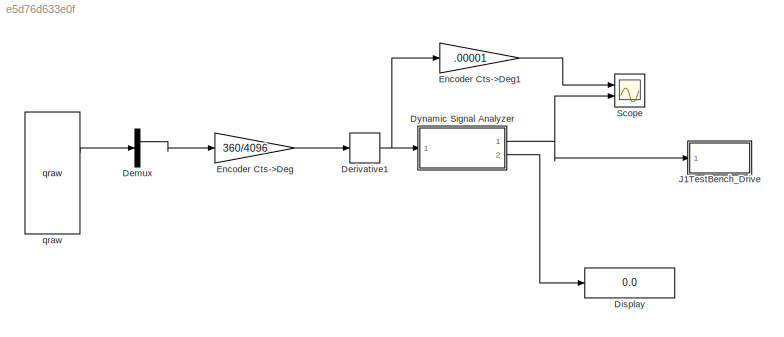
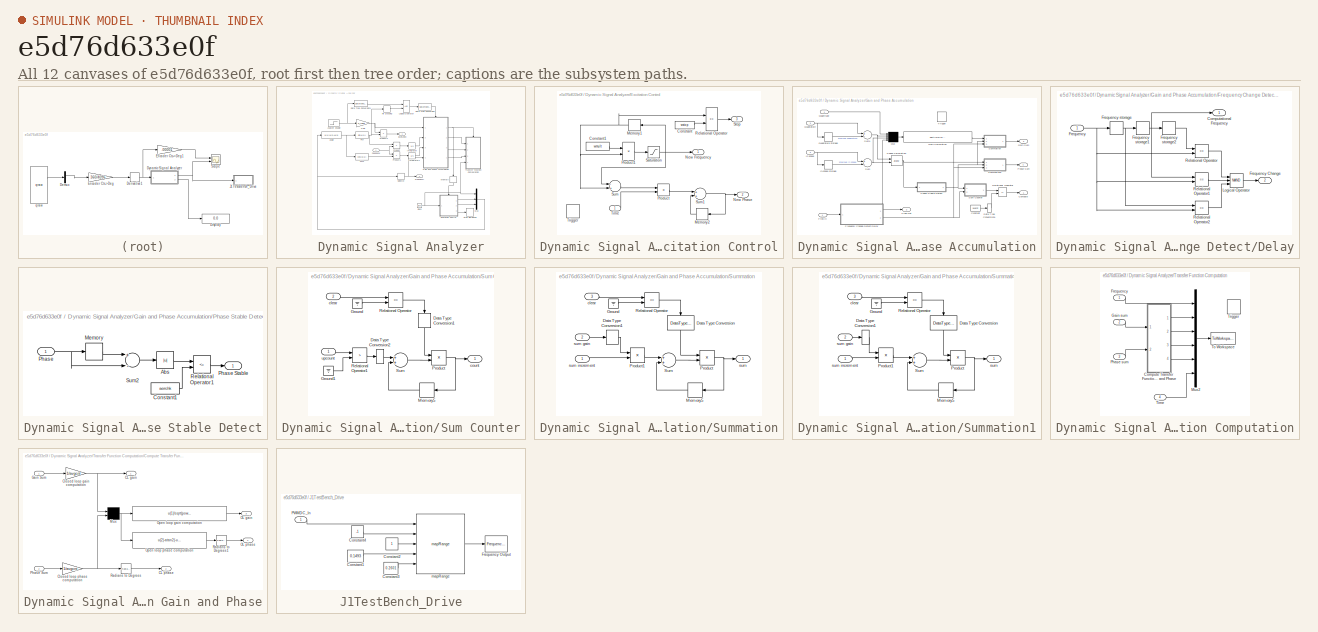
[diagram: thumbnail index - all 12 canvases of the model, root first then tree order]
MODEL slx_e5d76d633e0f
KIND model
CONFIG AbsTol = auto
CONFIG EnableMultiTasking = on
CONFIG FixedStep = 0.001
CONFIG MaxStep = auto
CONFIG MinStep = auto
CONFIG RelTol = 1e-3
CONFIG SampleTimeConstraint = Unconstrained
CONFIG Solver = ode5
CONFIG SolverName = ode5
CONFIG StartTime = 0.0
CONFIG StopTime = inf
BLOCK [Demux] Demux
  DisplayOption = bar
  Outputs = 2
  Ports = [1, 2]
BLOCK [Derivative] Derivative1
BLOCK [Display] Display
  Decimation = 1
  Ports = [1]
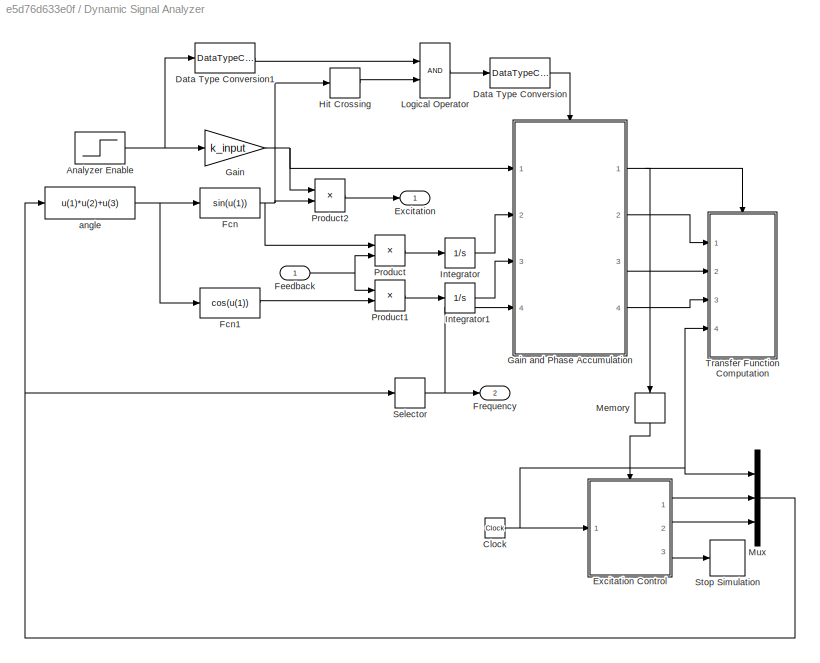
BLOCK [SubSystem] Dynamic Signal Analyzer
  Ports = [1, 2]
  RequestExecContextInheritance = off
  Variant = off
BLOCK [Step] Dynamic Signal Analyzer/Analyzer Enable
  After = analyzer_enable
  Time = tsettle
BLOCK [Clock] Dynamic Signal Analyzer/Clock
BLOCK [DataTypeConversion] Dynamic Signal Analyzer/Data Type Conversion
BLOCK [DataTypeConversion] Dynamic Signal Analyzer/Data Type Conversion1
BLOCK [Outport] Dynamic Signal Analyzer/Excitation
  IconDisplay = Port number
  InitialOutput = 0
BLOCK [SubSystem] Dynamic Signal Analyzer/Excitation Control
  Ports = [1, 3, 0, 1]
  RequestExecContextInheritance = off
  TreatAsAtomicUnit = on
  Variant = off
BLOCK [Constant] Dynamic Signal Analyzer/Excitation Control/Constant
  Value = wstop
BLOCK [Constant] Dynamic Signal Analyzer/Excitation Control/Constant1
  Value = wmult
BLOCK [Memory] Dynamic Signal Analyzer/Excitation Control/Memory1
  InheritSampleTime = on
  X0 = winit
BLOCK [Memory] Dynamic Signal Analyzer/Excitation Control/Memory2
  InheritSampleTime = on
BLOCK [Outport] Dynamic Signal Analyzer/Excitation Control/New Frequency
  IconDisplay = Port number
  InitialOutput = winit
BLOCK [Outport] Dynamic Signal Analyzer/Excitation Control/New Phase
  IconDisplay = Port number
  InitialOutput = 0
  Port = 2
BLOCK [Product] Dynamic Signal Analyzer/Excitation Control/Product
  Ports = [2, 1]
  RndMeth = Floor
BLOCK [Product] Dynamic Signal Analyzer/Excitation Control/Product1
  Ports = [2, 1]
  RndMeth = Floor
BLOCK [RelationalOperator] Dynamic Signal Analyzer/Excitation Control/Relational Operator
  Operator = <=
  Ports = [2, 1]
BLOCK [Saturate] Dynamic Signal Analyzer/Excitation Control/Saturation
  InputPortMap = u0
  LowerLimit = wstop
  Ports = [1, 1]
  UpperLimit = winit
BLOCK [Outport] Dynamic Signal Analyzer/Excitation Control/Stop
  IconDisplay = Port number
  InitialOutput = 0
  Port = 3
BLOCK [Sum] Dynamic Signal Analyzer/Excitation Control/Sum
  Inputs = -+
  Ports = [2, 1]
BLOCK [Sum] Dynamic Signal Analyzer/Excitation Control/Sum1
  Ports = [2, 1]
BLOCK [Inport] Dynamic Signal Analyzer/Excitation Control/Time
  IconDisplay = Port number
BLOCK [TriggerPort] Dynamic Signal Analyzer/Excitation Control/Trigger
  Ports = []
  VariantControl = Variant
BLOCK [Fcn] Dynamic Signal Analyzer/Fcn
  Expr = sin(u(1))
BLOCK [Fcn] Dynamic Signal Analyzer/Fcn1
  Expr = cos(u(1))
BLOCK [Inport] Dynamic Signal Analyzer/Feedback
  IconDisplay = Port number
BLOCK [Outport] Dynamic Signal Analyzer/Frequency
  IconDisplay = Port number
  InitialOutput = 0
  Port = 2
BLOCK [Gain] Dynamic Signal Analyzer/Gain
  Gain = k_input
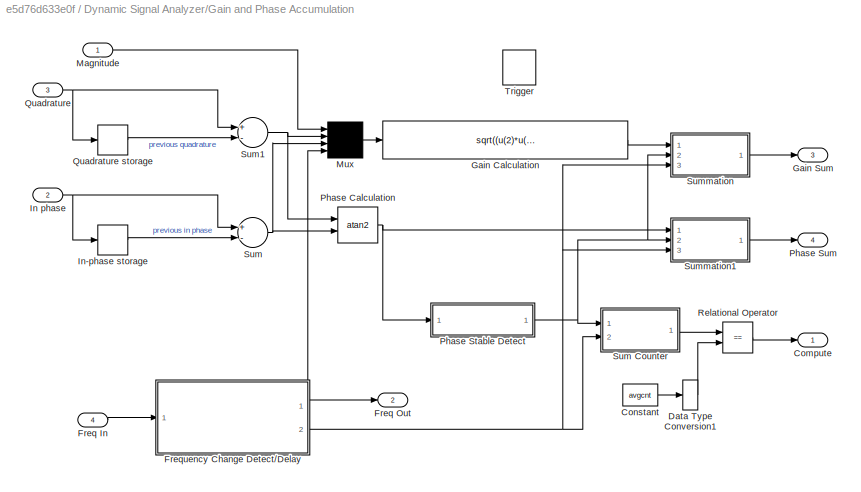
BLOCK [SubSystem] Dynamic Signal Analyzer/Gain and Phase Accumulation
  Ports = [4, 4, 0, 1]
  RequestExecContextInheritance = off
  TreatAsAtomicUnit = on
  Variant = off
BLOCK [Outport] Dynamic Signal Analyzer/Gain and Phase Accumulation/Compute
  IconDisplay = Port number
  InitialOutput = 0
BLOCK [Constant] Dynamic Signal Analyzer/Gain and Phase Accumulation/Constant
  Value = avgcnt
BLOCK [DataTypeConversion] Dynamic Signal Analyzer/Gain and Phase Accumulation/Data Type Conversion1
BLOCK [Inport] Dynamic Signal Analyzer/Gain and Phase Accumulation/Freq In
  IconDisplay = Port number
  Port = 4
BLOCK [Outport] Dynamic Signal Analyzer/Gain and Phase Accumulation/Freq Out
  IconDisplay = Port number
  InitialOutput = winit
  Port = 2
BLOCK [SubSystem] Dynamic Signal Analyzer/Gain and Phase Accumulation/Frequency Change Detect//Delay
  Ports = [1, 2]
  RequestExecContextInheritance = off
  Variant = off
BLOCK [Outport] Dynamic Signal Analyzer/Gain and Phase Accumulation/Frequency Change Detect//Delay/Computational Frequency
  IconDisplay = Port number
  InitialOutput = 0
BLOCK [Inport] Dynamic Signal Analyzer/Gain and Phase Accumulation/Frequency Change Detect//Delay/Frequency
  IconDisplay = Port number
BLOCK [Outport] Dynamic Signal Analyzer/Gain and Phase Accumulation/Frequency Change Detect//Delay/Frequency Change
  IconDisplay = Port number
  InitialOutput = 0
  Port = 2
BLOCK [Memory] Dynamic Signal Analyzer/Gain and Phase Accumulation/Frequency Change Detect//Delay/Frequency storage
  InheritSampleTime = on
  X0 = 1e-6
BLOCK [Memory] Dynamic Signal Analyzer/Gain and Phase Accumulation/Frequency Change Detect//Delay/Frequency storage1
  InheritSampleTime = on
  X0 = 1e-6
BLOCK [Memory] Dynamic Signal Analyzer/Gain and Phase Accumulation/Frequency Change Detect//Delay/Frequency storage2
  InheritSampleTime = on
  X0 = 1e-6
BLOCK [Logic] Dynamic Signal Analyzer/Gain and Phase Accumulation/Frequency Change Detect//Delay/Logical Operator
  Inputs = 3
  Operator = NAND
  Ports = [3, 1]
BLOCK [RelationalOperator] Dynamic Signal Analyzer/Gain and Phase Accumulation/Frequency Change Detect//Delay/Relational Operator
  Operator = ==
  Ports = [2, 1]
BLOCK [RelationalOperator] Dynamic Signal Analyzer/Gain and Phase Accumulation/Frequency Change Detect//Delay/Relational Operator1
  Operator = ==
  Ports = [2, 1]
BLOCK [RelationalOperator] Dynamic Signal Analyzer/Gain and Phase Accumulation/Frequency Change Detect//Delay/Relational Operator2
  Operator = ==
  Ports = [2, 1]
BLOCK [Fcn] Dynamic Signal Analyzer/Gain and Phase Accumulation/Gain Calculation
  Expr = sqrt((u(2)*u(2)+u(3)*u(3))*pow(u(4)/(pi*u(1)),2))
BLOCK [Outport] Dynamic Signal Analyzer/Gain and Phase Accumulation/Gain Sum
  IconDisplay = Port number
  InitialOutput = 0
  Port = 3
BLOCK [Inport] Dynamic Signal Analyzer/Gain and Phase Accumulation/In phase
  IconDisplay = Port number
  Port = 2
BLOCK [Memory] Dynamic Signal Analyzer/Gain and Phase Accumulation/In-phase storage
  InheritSampleTime = on
BLOCK [Inport] Dynamic Signal Analyzer/Gain and Phase Accumulation/Magnitude
  IconDisplay = Port number
BLOCK [Mux] Dynamic Signal Analyzer/Gain and Phase Accumulation/Mux
  Ports = [4, 1]
BLOCK [Trigonometry] Dynamic Signal Analyzer/Gain and Phase Accumulation/Phase Calculation
  Operator = atan2
  Ports = [2, 1]
BLOCK [SubSystem] Dynamic Signal Analyzer/Gain and Phase Accumulation/Phase Stable Detect
  Ports = [1, 1]
  RequestExecContextInheritance = off
  Variant = off
BLOCK [Abs] Dynamic Signal Analyzer/Gain and Phase Accumulation/Phase Stable Detect/Abs
BLOCK [Constant] Dynamic Signal Analyzer/Gain and Phase Accumulation/Phase Stable Detect/Constant1
  Value = aerrchk
BLOCK [Memory] Dynamic Signal Analyzer/Gain and Phase Accumulation/Phase Stable Detect/Memory
  InheritSampleTime = on
  X0 = 1e20
BLOCK [Inport] Dynamic Signal Analyzer/Gain and Phase Accumulation/Phase Stable Detect/Phase
  IconDisplay = Port number
BLOCK [Outport] Dynamic Signal Analyzer/Gain and Phase Accumulation/Phase Stable Detect/Phase Stable
  IconDisplay = Port number
  InitialOutput = 0
BLOCK [RelationalOperator] Dynamic Signal Analyzer/Gain and Phase Accumulation/Phase Stable Detect/Relational Operator1
  Operator = <=
  Ports = [2, 1]
BLOCK [Sum] Dynamic Signal Analyzer/Gain and Phase Accumulation/Phase Stable Detect/Sum2
  Inputs = +-
  Ports = [2, 1]
BLOCK [Outport] Dynamic Signal Analyzer/Gain and Phase Accumulation/Phase Sum
  IconDisplay = Port number
  InitialOutput = 0
  Port = 4
BLOCK [Inport] Dynamic Signal Analyzer/Gain and Phase Accumulation/Quadrature
  IconDisplay = Port number
  Port = 3
BLOCK [Memory] Dynamic Signal Analyzer/Gain and Phase Accumulation/Quadrature storage
  InheritSampleTime = on
BLOCK [RelationalOperator] Dynamic Signal Analyzer/Gain and Phase Accumulation/Relational Operator
  Operator = ==
  Ports = [2, 1]
BLOCK [Sum] Dynamic Signal Analyzer/Gain and Phase Accumulation/Sum
  Inputs = +-
  Ports = [2, 1]
BLOCK [SubSystem] Dynamic Signal Analyzer/Gain and Phase Accumulation/Sum Counter
  Ports = [2, 1]
  RequestExecContextInheritance = off
  Variant = off
BLOCK [DataTypeConversion] Dynamic Signal Analyzer/Gain and Phase Accumulation/Sum Counter/Data Type Conversion1
BLOCK [DataTypeConversion] Dynamic Signal Analyzer/Gain and Phase Accumulation/Sum Counter/Data Type Conversion2
BLOCK [Ground] Dynamic Signal Analyzer/Gain and Phase Accumulation/Sum Counter/Ground
BLOCK [Ground] Dynamic Signal Analyzer/Gain and Phase Accumulation/Sum Counter/Ground1
BLOCK [Memory] Dynamic Signal Analyzer/Gain and Phase Accumulation/Sum Counter/Memory5
  InheritSampleTime = on
BLOCK [Product] Dynamic Signal Analyzer/Gain and Phase Accumulation/Sum Counter/Product
  Ports = [2, 1]
  RndMeth = Floor
BLOCK [RelationalOperator] Dynamic Signal Analyzer/Gain and Phase Accumulation/Sum Counter/Relational Operator
  Operator = <=
  Ports = [2, 1]
BLOCK [RelationalOperator] Dynamic Signal Analyzer/Gain and Phase Accumulation/Sum Counter/Relational Operator1
  Operator = >
  Ports = [2, 1]
BLOCK [Sum] Dynamic Signal Analyzer/Gain and Phase Accumulation/Sum Counter/Sum
  Ports = [2, 1]
BLOCK [Inport] Dynamic Signal Analyzer/Gain and Phase Accumulation/Sum Counter/clear
  IconDisplay = Port number
  Port = 2
BLOCK [Outport] Dynamic Signal Analyzer/Gain and Phase Accumulation/Sum Counter/count
  IconDisplay = Port number
BLOCK [Inport] Dynamic Signal Analyzer/Gain and Phase Accumulation/Sum Counter/upcount
  IconDisplay = Port number
BLOCK [Sum] Dynamic Signal Analyzer/Gain and Phase Accumulation/Sum1
  Inputs = +-
  Ports = [2, 1]
BLOCK [SubSystem] Dynamic Signal Analyzer/Gain and Phase Accumulation/Summation
  Ports = [3, 1]
  RequestExecContextInheritance = off
  Variant = off
BLOCK [DataTypeConversion] Dynamic Signal Analyzer/Gain and Phase Accumulation/Summation/Data Type Conversion
BLOCK [DataTypeConversion] Dynamic Signal Analyzer/Gain and Phase Accumulation/Summation/Data Type Conversion1
BLOCK [Ground] Dynamic Signal Analyzer/Gain and Phase Accumulation/Summation/Ground
BLOCK [Memory] Dynamic Signal Analyzer/Gain and Phase Accumulation/Summation/Memory5
  InheritSampleTime = on
BLOCK [Product] Dynamic Signal Analyzer/Gain and Phase Accumulation/Summation/Product
  Ports = [2, 1]
  RndMeth = Floor
BLOCK [Product] Dynamic Signal Analyzer/Gain and Phase Accumulation/Summation/Product1
  Ports = [2, 1]
  RndMeth = Floor
BLOCK [RelationalOperator] Dynamic Signal Analyzer/Gain and Phase Accumulation/Summation/Relational Operator
  Operator = <=
  Ports = [2, 1]
BLOCK [Sum] Dynamic Signal Analyzer/Gain and Phase Accumulation/Summation/Sum
  Ports = [2, 1]
BLOCK [Inport] Dynamic Signal Analyzer/Gain and Phase Accumulation/Summation/clear
  IconDisplay = Port number
  Port = 3
BLOCK [Outport] Dynamic Signal Analyzer/Gain and Phase Accumulation/Summation/sum
  IconDisplay = Port number
BLOCK [Inport] Dynamic Signal Analyzer/Gain and Phase Accumulation/Summation/sum gain
  IconDisplay = Port number
  Port = 2
BLOCK [Inport] Dynamic Signal Analyzer/Gain and Phase Accumulation/Summation/sum increment
  IconDisplay = Port number
BLOCK [SubSystem] Dynamic Signal Analyzer/Gain and Phase Accumulation/Summation1
  Ports = [3, 1]
  RequestExecContextInheritance = off
  Variant = off
BLOCK [DataTypeConversion] Dynamic Signal Analyzer/Gain and Phase Accumulation/Summation1/Data Type Conversion
BLOCK [DataTypeConversion] Dynamic Signal Analyzer/Gain and Phase Accumulation/Summation1/Data Type Conversion1
BLOCK [Ground] Dynamic Signal Analyzer/Gain and Phase Accumulation/Summation1/Ground
BLOCK [Memory] Dynamic Signal Analyzer/Gain and Phase Accumulation/Summation1/Memory5
  InheritSampleTime = on
BLOCK [Product] Dynamic Signal Analyzer/Gain and Phase Accumulation/Summation1/Product
  Ports = [2, 1]
  RndMeth = Floor
BLOCK [Product] Dynamic Signal Analyzer/Gain and Phase Accumulation/Summation1/Product1
  Ports = [2, 1]
  RndMeth = Floor
BLOCK [RelationalOperator] Dynamic Signal Analyzer/Gain and Phase Accumulation/Summation1/Relational Operator
  Operator = <=
  Ports = [2, 1]
BLOCK [Sum] Dynamic Signal Analyzer/Gain and Phase Accumulation/Summation1/Sum
  Ports = [2, 1]
BLOCK [Inport] Dynamic Signal Analyzer/Gain and Phase Accumulation/Summation1/clear
  IconDisplay = Port number
  Port = 3
BLOCK [Outport] Dynamic Signal Analyzer/Gain and Phase Accumulation/Summation1/sum
  IconDisplay = Port number
BLOCK [Inport] Dynamic Signal Analyzer/Gain and Phase Accumulation/Summation1/sum gain
  IconDisplay = Port number
  Port = 2
BLOCK [Inport] Dynamic Signal Analyzer/Gain and Phase Accumulation/Summation1/sum increment
  IconDisplay = Port number
BLOCK [TriggerPort] Dynamic Signal Analyzer/Gain and Phase Accumulation/Trigger
  Ports = []
  VariantControl = Variant
BLOCK [HitCross] Dynamic Signal Analyzer/Hit Crossing
  HitCrossingDirection = rising
  Ports = [1, 1]
BLOCK [Integrator] Dynamic Signal Analyzer/Integrator
  Ports = [1, 1]
BLOCK [Integrator] Dynamic Signal Analyzer/Integrator1
  Ports = [1, 1]
BLOCK [Logic] Dynamic Signal Analyzer/Logical Operator
  Ports = [2, 1]
BLOCK [Memory] Dynamic Signal Analyzer/Memory
  InheritSampleTime = on
BLOCK [Mux] Dynamic Signal Analyzer/Mux
  Inputs = 3
  Ports = [3, 1]
BLOCK [Product] Dynamic Signal Analyzer/Product
  Ports = [2, 1]
  RndMeth = Floor
BLOCK [Product] Dynamic Signal Analyzer/Product1
  Ports = [2, 1]
  RndMeth = Floor
BLOCK [Product] Dynamic Signal Analyzer/Product2
  Ports = [2, 1]
  RndMeth = Floor
BLOCK [Selector] Dynamic Signal Analyzer/Selector
  IndexOptions = Index vector (dialog)
  Indices = [2]
  InputPortWidth = 3
  OutputSizes = 1
  Ports = [1, 1]
BLOCK [Stop] Dynamic Signal Analyzer/Stop Simulation
BLOCK [SubSystem] Dynamic Signal Analyzer/Transfer Function Computation
  Ports = [4, 0, 0, 1]
  RequestExecContextInheritance = off
  TreatAsAtomicUnit = on
  Variant = off
BLOCK [SubSystem] Dynamic Signal Analyzer/Transfer Function Computation/Compute Transfer Function Gain and Phase
  Ports = [2, 4]
  RequestExecContextInheritance = off
  Variant = off
BLOCK [Outport] Dynamic Signal Analyzer/Transfer Function Computation/Compute Transfer Function Gain and Phase/CL gain
  IconDisplay = Port number
  InitialOutput = 0
BLOCK [Outport] Dynamic Signal Analyzer/Transfer Function Computation/Compute Transfer Function Gain and Phase/CL phase
  IconDisplay = Port number
  InitialOutput = 0
  Port = 2
BLOCK [Gain] Dynamic Signal Analyzer/Transfer Function Computation/Compute Transfer Function Gain and Phase/Closed loop gain computation
  Gain = 1/avgcnt
BLOCK [Gain] Dynamic Signal Analyzer/Transfer Function Computation/Compute Transfer Function Gain and Phase/Closed loop phase computation
  Gain = 1/avgcnt
BLOCK [Inport] Dynamic Signal Analyzer/Transfer Function Computation/Compute Transfer Function Gain and Phase/Gain Sum
  IconDisplay = Port number
BLOCK [Mux] Dynamic Signal Analyzer/Transfer Function Computation/Compute Transfer Function Gain and Phase/Mux
  Inputs = 2
  Ports = [2, 1]
BLOCK [Outport] Dynamic Signal Analyzer/Transfer Function Computation/Compute Transfer Function Gain and Phase/OL gain
  IconDisplay = Port number
  InitialOutput = 0
  Port = 3
BLOCK [Outport] Dynamic Signal Analyzer/Transfer Function Computation/Compute Transfer Function Gain and Phase/OL phase
  IconDisplay = Port number
  InitialOutput = 0
  Port = 4
BLOCK [Fcn] Dynamic Signal Analyzer/Transfer Function Computation/Compute Transfer Function Gain and Phase/Open loop gain computation
  Expr = u(1)/sqrt(pow(1-u(1)*cos(u(2)),2)+pow(u(1)*sin(u(2)),2))
BLOCK [Fcn] Dynamic Signal Analyzer/Transfer Function Computation/Compute Transfer Function Gain and Phase/Open loop phase computation
  Expr = u(2)-atan2(-u(1)*sin(u(2)),1-u(1)*cos(u(2)))
BLOCK [Inport] Dynamic Signal Analyzer/Transfer Function Computation/Compute Transfer Function Gain and Phase/Phase Sum
  IconDisplay = Port number
  Port = 2
BLOCK [Reference] Dynamic Signal Analyzer/Transfer Function Computation/Compute Transfer Function Gain and Phase/Radians to Degrees  REF=simulink_extras/Transformations/Radians
to Degrees
  Ports = [1, 1]
  SourceBlock = simulink_extras/Transformations/Radians\nto Degrees
  SourceType = RadiansToDegrees
BLOCK [Reference] Dynamic Signal Analyzer/Transfer Function Computation/Compute Transfer Function Gain and Phase/Radians to Degrees1  REF=simulink_extras/Transformations/Radians
to Degrees
  Ports = [1, 1]
  SourceBlock = simulink_extras/Transformations/Radians\nto Degrees
  SourceType = RadiansToDegrees
BLOCK [Inport] Dynamic Signal Analyzer/Transfer Function Computation/Frequency
  IconDisplay = Port number
BLOCK [Inport] Dynamic Signal Analyzer/Transfer Function Computation/Gain sum
  IconDisplay = Port number
  Port = 2
BLOCK [Mux] Dynamic Signal Analyzer/Transfer Function Computation/Mux2
  Inputs = 6
  Ports = [6, 1]
BLOCK [Inport] Dynamic Signal Analyzer/Transfer Function Computation/Phase sum
  IconDisplay = Port number
  Port = 3
BLOCK [Inport] Dynamic Signal Analyzer/Transfer Function Computation/Time
  IconDisplay = Port number
  Port = 4
BLOCK [ToWorkspace] Dynamic Signal Analyzer/Transfer Function Computation/To Workspace
  Ports = [1]
  SampleTime = -1
  VariableName = freq_resp
BLOCK [TriggerPort] Dynamic Signal Analyzer/Transfer Function Computation/Trigger
  Ports = []
  VariantControl = Variant
BLOCK [Fcn] Dynamic Signal Analyzer/angle
  Expr = u(1)*u(2)+u(3)
BLOCK [Gain] Encoder Cts->Deg
  Gain = 360/4096
  OutDataTypeStr = Inherit: Inherit via internal rule
  ParamDataTypeStr = Inherit: Inherit via internal rule
  SaturateOnIntegerOverflow = off
BLOCK [Gain] Encoder Cts->Deg1
  Gain = .00001
  OutDataTypeStr = Inherit: Inherit via internal rule
  ParamDataTypeStr = Inherit: Inherit via internal rule
  SaturateOnIntegerOverflow = off
BLOCK [SubSystem] J1TestBench_Drive
  Ports = [1]
  RequestExecContextInheritance = off
  Variant = off
BLOCK [Constant] J1TestBench_Drive/Constant1
  Value = 0.1493
BLOCK [Constant] J1TestBench_Drive/Constant2
BLOCK [Constant] J1TestBench_Drive/Constant3
  Value = 0.2601
BLOCK [Constant] J1TestBench_Drive/Constant4
  Value = -1
BLOCK [Reference] J1TestBench_Drive/Frequency Output  REF=sldrtlib/Frequency Output
  AttributesFormatString = Humusoft\nMF644 [auto]
  Ports = [1]
  SourceBlock = sldrtlib/Frequency Output
  SourceType = Simulink Desktop Real-Time Frequency Output
BLOCK [Inport] J1TestBench_Drive/PWMDC_In
  IconDisplay = Port number
BLOCK [Reference] J1TestBench_Drive/mapRange   REF=dcpctrl/mapRange

  Ports = [5, 1]
  SourceBlock = dcpctrl/mapRange
  SourceType = SubSystem
BLOCK [Scope] Scope
  NumInputPorts = 2
  Ports = [2]
  ScopeSpecificationString = Simulink.scopes.TimeScopeBlockCfg('CurrentConfiguration', extmgr.ConfigurationSet(extmgr.Configuration('Core','General UI',true),extmgr.Configuration('Core','Source UI',true),extmgr.Configuration('Sources','WiredSimulink',true),extmgr.Configuration('Visuals','Time Domain',true,'SerializedDisplays',{struct('MinYLimReal','-33.27759','MaxYLimReal','34.0686','YLabelReal','','MinYLimMag','0.00000','Max...<+1420ch>
BLOCK [Reference] qraw  REF=dcpctrl/qraw
  Ports = [0, 5]
  SourceBlock = dcpctrl/qraw
  SourceType = SubSystem
LINE Demux:1 -> Encoder Cts->Deg:1
NET Derivative1:1 -> Dynamic Signal Analyzer:1, Encoder Cts->Deg1:1
NET Dynamic Signal Analyzer/Analyzer Enable:1 -> Dynamic Signal Analyzer/Data Type Conversion1:1, Dynamic Signal Analyzer/Gain:1
NET Dynamic Signal Analyzer/Clock:1 -> Dynamic Signal Analyzer/Excitation Control:1, Dynamic Signal Analyzer/Mux:1, Dynamic Signal Analyzer/Transfer Function Computation:4
LINE Dynamic Signal Analyzer/Data Type Conversion1:1 -> Dynamic Signal Analyzer/Logical Operator:1
LINE Dynamic Signal Analyzer/Data Type Conversion:1 -> Dynamic Signal Analyzer/Gain and Phase Accumulation:trigger
LINE Dynamic Signal Analyzer/Excitation Control/Constant1:1 -> Dynamic Signal Analyzer/Excitation Control/Product1:1
LINE Dynamic Signal Analyzer/Excitation Control/Constant:1 -> Dynamic Signal Analyzer/Excitation Control/Relational Operator:2
NET Dynamic Signal Analyzer/Excitation Control/Memory1:1 -> Dynamic Signal Analyzer/Excitation Control/Product1:2, Dynamic Signal Analyzer/Excitation Control/Relational Operator:1, Dynamic Signal Analyzer/Excitation Control/Sum:2
LINE Dynamic Signal Analyzer/Excitation Control/Memory2:1 -> Dynamic Signal Analyzer/Excitation Control/Sum1:2
LINE Dynamic Signal Analyzer/Excitation Control/Product1:1 -> Dynamic Signal Analyzer/Excitation Control/Saturation:1
LINE Dynamic Signal Analyzer/Excitation Control/Product:1 -> Dynamic Signal Analyzer/Excitation Control/Sum1:1
LINE Dynamic Signal Analyzer/Excitation Control/Relational Operator:1 -> Dynamic Signal Analyzer/Excitation Control/Stop:1
NET Dynamic Signal Analyzer/Excitation Control/Saturation:1 -> Dynamic Signal Analyzer/Excitation Control/Memory1:1, Dynamic Signal Analyzer/Excitation Control/New Frequency:1, Dynamic Signal Analyzer/Excitation Control/Sum:1
NET Dynamic Signal Analyzer/Excitation Control/Sum1:1 -> Dynamic Signal Analyzer/Excitation Control/Memory2:1, Dynamic Signal Analyzer/Excitation Control/New Phase:1
LINE Dynamic Signal Analyzer/Excitation Control/Sum:1 -> Dynamic Signal Analyzer/Excitation Control/Product:1
LINE Dynamic Signal Analyzer/Excitation Control/Time:1 -> Dynamic Signal Analyzer/Excitation Control/Product:2
LINE Dynamic Signal Analyzer/Excitation Control:1 -> Dynamic Signal Analyzer/Mux:2
LINE Dynamic Signal Analyzer/Excitation Control:2 -> Dynamic Signal Analyzer/Mux:3
LINE Dynamic Signal Analyzer/Excitation Control:3 -> Dynamic Signal Analyzer/Stop Simulation:1
LINE Dynamic Signal Analyzer/Fcn1:1 -> Dynamic Signal Analyzer/Product1:2
NET Dynamic Signal Analyzer/Fcn:1 -> Dynamic Signal Analyzer/Hit Crossing:1, Dynamic Signal Analyzer/Product2:2, Dynamic Signal Analyzer/Product:1
NET Dynamic Signal Analyzer/Feedback:1 -> Dynamic Signal Analyzer/Product1:1, Dynamic Signal Analyzer/Product:2
LINE Dynamic Signal Analyzer/Gain and Phase Accumulation/Constant:1 -> Dynamic Signal Analyzer/Gain and Phase Accumulation/Data Type Conversion1:1
LINE Dynamic Signal Analyzer/Gain and Phase Accumulation/Data Type Conversion1:1 -> Dynamic Signal Analyzer/Gain and Phase Accumulation/Relational Operator:2
LINE Dynamic Signal Analyzer/Gain and Phase Accumulation/Freq In:1 -> Dynamic Signal Analyzer/Gain and Phase Accumulation/Frequency Change Detect//Delay:1
NET Dynamic Signal Analyzer/Gain and Phase Accumulation/Frequency Change Detect//Delay/Frequency storage1:1 -> Dynamic Signal Analyzer/Gain and Phase Accumulation/Frequency Change Detect//Delay/Computational Frequency:1, Dynamic Signal Analyzer/Gain and Phase Accumulation/Frequency Change Detect//Delay/Frequency storage2:1, Dynamic Signal Analyzer/Gain and Phase Accumulation/Frequency Change Detect//Delay/Relational Operator1:1
LINE Dynamic Signal Analyzer/Gain and Phase Accumulation/Frequency Change Detect//Delay/Frequency storage2:1 -> Dynamic Signal Analyzer/Gain and Phase Accumulation/Frequency Change Detect//Delay/Relational Operator:1
NET Dynamic Signal Analyzer/Gain and Phase Accumulation/Frequency Change Detect//Delay/Frequency storage:1 -> Dynamic Signal Analyzer/Gain and Phase Accumulation/Frequency Change Detect//Delay/Frequency storage1:1, Dynamic Signal Analyzer/Gain and Phase Accumulation/Frequency Change Detect//Delay/Relational Operator2:1
NET Dynamic Signal Analyzer/Gain and Phase Accumulation/Frequency Change Detect//Delay/Frequency:1 -> Dynamic Signal Analyzer/Gain and Phase Accumulation/Frequency Change Detect//Delay/Frequency storage:1, Dynamic Signal Analyzer/Gain and Phase Accumulation/Frequency Change Detect//Delay/Relational Operator1:2, Dynamic Signal Analyzer/Gain and Phase Accumulation/Frequency Change Detect//Delay/Relational Operator2:2, Dynamic Signal Analyzer/Gain and Phase Accumulation/Frequency Change Detect//Delay/Relational Operator:2
LINE Dynamic Signal Analyzer/Gain and Phase Accumulation/Frequency Change Detect//Delay/Logical Operator:1 -> Dynamic Signal Analyzer/Gain and Phase Accumulation/Frequency Change Detect//Delay/Frequency Change:1
LINE Dynamic Signal Analyzer/Gain and Phase Accumulation/Frequency Change Detect//Delay/Relational Operator1:1 -> Dynamic Signal Analyzer/Gain and Phase Accumulation/Frequency Change Detect//Delay/Logical Operator:2
LINE Dynamic Signal Analyzer/Gain and Phase Accumulation/Frequency Change Detect//Delay/Relational Operator2:1 -> Dynamic Signal Analyzer/Gain and Phase Accumulation/Frequency Change Detect//Delay/Logical Operator:3
LINE Dynamic Signal Analyzer/Gain and Phase Accumulation/Frequency Change Detect//Delay/Relational Operator:1 -> Dynamic Signal Analyzer/Gain and Phase Accumulation/Frequency Change Detect//Delay/Logical Operator:1
NET Dynamic Signal Analyzer/Gain and Phase Accumulation/Frequency Change Detect//Delay:1 -> Dynamic Signal Analyzer/Gain and Phase Accumulation/Freq Out:1, Dynamic Signal Analyzer/Gain and Phase Accumulation/Mux:4
NET Dynamic Signal Analyzer/Gain and Phase Accumulation/Frequency Change Detect//Delay:2 -> Dynamic Signal Analyzer/Gain and Phase Accumulation/Sum Counter:2, Dynamic Signal Analyzer/Gain and Phase Accumulation/Summation1:3, Dynamic Signal Analyzer/Gain and Phase Accumulation/Summation:3
LINE Dynamic Signal Analyzer/Gain and Phase Accumulation/Gain Calculation:1 -> Dynamic Signal Analyzer/Gain and Phase Accumulation/Summation:1
NET Dynamic Signal Analyzer/Gain and Phase Accumulation/In phase:1 -> Dynamic Signal Analyzer/Gain and Phase Accumulation/In-phase storage:1, Dynamic Signal Analyzer/Gain and Phase Accumulation/Sum:1
LINE Dynamic Signal Analyzer/Gain and Phase Accumulation/In-phase storage:1 -> Dynamic Signal Analyzer/Gain and Phase Accumulation/Sum:2
LINE Dynamic Signal Analyzer/Gain and Phase Accumulation/Magnitude:1 -> Dynamic Signal Analyzer/Gain and Phase Accumulation/Mux:1
LINE Dynamic Signal Analyzer/Gain and Phase Accumulation/Mux:1 -> Dynamic Signal Analyzer/Gain and Phase Accumulation/Gain Calculation:1
NET Dynamic Signal Analyzer/Gain and Phase Accumulation/Phase Calculation:1 -> Dynamic Signal Analyzer/Gain and Phase Accumulation/Phase Stable Detect:1, Dynamic Signal Analyzer/Gain and Phase Accumulation/Summation1:1
LINE Dynamic Signal Analyzer/Gain and Phase Accumulation/Phase Stable Detect/Abs:1 -> Dynamic Signal Analyzer/Gain and Phase Accumulation/Phase Stable Detect/Relational Operator1:1
LINE Dynamic Signal Analyzer/Gain and Phase Accumulation/Phase Stable Detect/Constant1:1 -> Dynamic Signal Analyzer/Gain and Phase Accumulation/Phase Stable Detect/Relational Operator1:2
LINE Dynamic Signal Analyzer/Gain and Phase Accumulation/Phase Stable Detect/Memory:1 -> Dynamic Signal Analyzer/Gain and Phase Accumulation/Phase Stable Detect/Sum2:1
NET Dynamic Signal Analyzer/Gain and Phase Accumulation/Phase Stable Detect/Phase:1 -> Dynamic Signal Analyzer/Gain and Phase Accumulation/Phase Stable Detect/Memory:1, Dynamic Signal Analyzer/Gain and Phase Accumulation/Phase Stable Detect/Sum2:2
LINE Dynamic Signal Analyzer/Gain and Phase Accumulation/Phase Stable Detect/Relational Operator1:1 -> Dynamic Signal Analyzer/Gain and Phase Accumulation/Phase Stable Detect/Phase Stable:1
LINE Dynamic Signal Analyzer/Gain and Phase Accumulation/Phase Stable Detect/Sum2:1 -> Dynamic Signal Analyzer/Gain and Phase Accumulation/Phase Stable Detect/Abs:1
NET Dynamic Signal Analyzer/Gain and Phase Accumulation/Phase Stable Detect:1 -> Dynamic Signal Analyzer/Gain and Phase Accumulation/Sum Counter:1, Dynamic Signal Analyzer/Gain and Phase Accumulation/Summation1:2, Dynamic Signal Analyzer/Gain and Phase Accumulation/Summation:2
LINE Dynamic Signal Analyzer/Gain and Phase Accumulation/Quadrature storage:1 -> Dynamic Signal Analyzer/Gain and Phase Accumulation/Sum1:2
NET Dynamic Signal Analyzer/Gain and Phase Accumulation/Quadrature:1 -> Dynamic Signal Analyzer/Gain and Phase Accumulation/Quadrature storage:1, Dynamic Signal Analyzer/Gain and Phase Accumulation/Sum1:1
LINE Dynamic Signal Analyzer/Gain and Phase Accumulation/Relational Operator:1 -> Dynamic Signal Analyzer/Gain and Phase Accumulation/Compute:1
LINE Dynamic Signal Analyzer/Gain and Phase Accumulation/Sum Counter/Data Type Conversion1:1 -> Dynamic Signal Analyzer/Gain and Phase Accumulation/Sum Counter/Product:1
LINE Dynamic Signal Analyzer/Gain and Phase Accumulation/Sum Counter/Data Type Conversion2:1 -> Dynamic Signal Analyzer/Gain and Phase Accumulation/Sum Counter/Sum:1
LINE Dynamic Signal Analyzer/Gain and Phase Accumulation/Sum Counter/Ground1:1 -> Dynamic Signal Analyzer/Gain and Phase Accumulation/Sum Counter/Relational Operator1:2
LINE Dynamic Signal Analyzer/Gain and Phase Accumulation/Sum Counter/Ground:1 -> Dynamic Signal Analyzer/Gain and Phase Accumulation/Sum Counter/Relational Operator:2
LINE Dynamic Signal Analyzer/Gain and Phase Accumulation/Sum Counter/Memory5:1 -> Dynamic Signal Analyzer/Gain and Phase Accumulation/Sum Counter/Sum:2
NET Dynamic Signal Analyzer/Gain and Phase Accumulation/Sum Counter/Product:1 -> Dynamic Signal Analyzer/Gain and Phase Accumulation/Sum Counter/Memory5:1, Dynamic Signal Analyzer/Gain and Phase Accumulation/Sum Counter/count:1
LINE Dynamic Signal Analyzer/Gain and Phase Accumulation/Sum Counter/Relational Operator1:1 -> Dynamic Signal Analyzer/Gain and Phase Accumulation/Sum Counter/Data Type Conversion2:1
LINE Dynamic Signal Analyzer/Gain and Phase Accumulation/Sum Counter/Relational Operator:1 -> Dynamic Signal Analyzer/Gain and Phase Accumulation/Sum Counter/Data Type Conversion1:1
LINE Dynamic Signal Analyzer/Gain and Phase Accumulation/Sum Counter/Sum:1 -> Dynamic Signal Analyzer/Gain and Phase Accumulation/Sum Counter/Product:2
LINE Dynamic Signal Analyzer/Gain and Phase Accumulation/Sum Counter/clear:1 -> Dynamic Signal Analyzer/Gain and Phase Accumulation/Sum Counter/Relational Operator:1
LINE Dynamic Signal Analyzer/Gain and Phase Accumulation/Sum Counter/upcount:1 -> Dynamic Signal Analyzer/Gain and Phase Accumulation/Sum Counter/Relational Operator1:1
LINE Dynamic Signal Analyzer/Gain and Phase Accumulation/Sum Counter:1 -> Dynamic Signal Analyzer/Gain and Phase Accumulation/Relational Operator:1
NET Dynamic Signal Analyzer/Gain and Phase Accumulation/Sum1:1 -> Dynamic Signal Analyzer/Gain and Phase Accumulation/Mux:2, Dynamic Signal Analyzer/Gain and Phase Accumulation/Phase Calculation:1
NET Dynamic Signal Analyzer/Gain and Phase Accumulation/Sum:1 -> Dynamic Signal Analyzer/Gain and Phase Accumulation/Mux:3, Dynamic Signal Analyzer/Gain and Phase Accumulation/Phase Calculation:2
LINE Dynamic Signal Analyzer/Gain and Phase Accumulation/Summation/Data Type Conversion1:1 -> Dynamic Signal Analyzer/Gain and Phase Accumulation/Summation/Product1:1
LINE Dynamic Signal Analyzer/Gain and Phase Accumulation/Summation/Data Type Conversion:1 -> Dynamic Signal Analyzer/Gain and Phase Accumulation/Summation/Product:1
LINE Dynamic Signal Analyzer/Gain and Phase Accumulation/Summation/Ground:1 -> Dynamic Signal Analyzer/Gain and Phase Accumulation/Summation/Relational Operator:2
LINE Dynamic Signal Analyzer/Gain and Phase Accumulation/Summation/Memory5:1 -> Dynamic Signal Analyzer/Gain and Phase Accumulation/Summation/Sum:2
LINE Dynamic Signal Analyzer/Gain and Phase Accumulation/Summation/Product1:1 -> Dynamic Signal Analyzer/Gain and Phase Accumulation/Summation/Sum:1
NET Dynamic Signal Analyzer/Gain and Phase Accumulation/Summation/Product:1 -> Dynamic Signal Analyzer/Gain and Phase Accumulation/Summation/Memory5:1, Dynamic Signal Analyzer/Gain and Phase Accumulation/Summation/sum:1
LINE Dynamic Signal Analyzer/Gain and Phase Accumulation/Summation/Relational Operator:1 -> Dynamic Signal Analyzer/Gain and Phase Accumulation/Summation/Data Type Conversion:1
LINE Dynamic Signal Analyzer/Gain and Phase Accumulation/Summation/Sum:1 -> Dynamic Signal Analyzer/Gain and Phase Accumulation/Summation/Product:2
LINE Dynamic Signal Analyzer/Gain and Phase Accumulation/Summation/clear:1 -> Dynamic Signal Analyzer/Gain and Phase Accumulation/Summation/Relational Operator:1
LINE Dynamic Signal Analyzer/Gain and Phase Accumulation/Summation/sum gain:1 -> Dynamic Signal Analyzer/Gain and Phase Accumulation/Summation/Data Type Conversion1:1
LINE Dynamic Signal Analyzer/Gain and Phase Accumulation/Summation/sum increment:1 -> Dynamic Signal Analyzer/Gain and Phase Accumulation/Summation/Product1:2
LINE Dynamic Signal Analyzer/Gain and Phase Accumulation/Summation1/Data Type Conversion1:1 -> Dynamic Signal Analyzer/Gain and Phase Accumulation/Summation1/Product1:1
LINE Dynamic Signal Analyzer/Gain and Phase Accumulation/Summation1/Data Type Conversion:1 -> Dynamic Signal Analyzer/Gain and Phase Accumulation/Summation1/Product:1
LINE Dynamic Signal Analyzer/Gain and Phase Accumulation/Summation1/Ground:1 -> Dynamic Signal Analyzer/Gain and Phase Accumulation/Summation1/Relational Operator:2
LINE Dynamic Signal Analyzer/Gain and Phase Accumulation/Summation1/Memory5:1 -> Dynamic Signal Analyzer/Gain and Phase Accumulation/Summation1/Sum:2
LINE Dynamic Signal Analyzer/Gain and Phase Accumulation/Summation1/Product1:1 -> Dynamic Signal Analyzer/Gain and Phase Accumulation/Summation1/Sum:1
NET Dynamic Signal Analyzer/Gain and Phase Accumulation/Summation1/Product:1 -> Dynamic Signal Analyzer/Gain and Phase Accumulation/Summation1/Memory5:1, Dynamic Signal Analyzer/Gain and Phase Accumulation/Summation1/sum:1
LINE Dynamic Signal Analyzer/Gain and Phase Accumulation/Summation1/Relational Operator:1 -> Dynamic Signal Analyzer/Gain and Phase Accumulation/Summation1/Data Type Conversion:1
LINE Dynamic Signal Analyzer/Gain and Phase Accumulation/Summation1/Sum:1 -> Dynamic Signal Analyzer/Gain and Phase Accumulation/Summation1/Product:2
LINE Dynamic Signal Analyzer/Gain and Phase Accumulation/Summation1/clear:1 -> Dynamic Signal Analyzer/Gain and Phase Accumulation/Summation1/Relational Operator:1
LINE Dynamic Signal Analyzer/Gain and Phase Accumulation/Summation1/sum gain:1 -> Dynamic Signal Analyzer/Gain and Phase Accumulation/Summation1/Data Type Conversion1:1
LINE Dynamic Signal Analyzer/Gain and Phase Accumulation/Summation1/sum increment:1 -> Dynamic Signal Analyzer/Gain and Phase Accumulation/Summation1/Product1:2
LINE Dynamic Signal Analyzer/Gain and Phase Accumulation/Summation1:1 -> Dynamic Signal Analyzer/Gain and Phase Accumulation/Phase Sum:1
LINE Dynamic Signal Analyzer/Gain and Phase Accumulation/Summation:1 -> Dynamic Signal Analyzer/Gain and Phase Accumulation/Gain Sum:1
NET Dynamic Signal Analyzer/Gain and Phase Accumulation:1 -> Dynamic Signal Analyzer/Memory:1, Dynamic Signal Analyzer/Transfer Function Computation:trigger
LINE Dynamic Signal Analyzer/Gain and Phase Accumulation:2 -> Dynamic Signal Analyzer/Transfer Function Computation:1
LINE Dynamic Signal Analyzer/Gain and Phase Accumulation:3 -> Dynamic Signal Analyzer/Transfer Function Computation:2
LINE Dynamic Signal Analyzer/Gain and Phase Accumulation:4 -> Dynamic Signal Analyzer/Transfer Function Computation:3
NET Dynamic Signal Analyzer/Gain:1 -> Dynamic Signal Analyzer/Gain and Phase Accumulation:1, Dynamic Signal Analyzer/Product2:1
LINE Dynamic Signal Analyzer/Hit Crossing:1 -> Dynamic Signal Analyzer/Logical Operator:2
LINE Dynamic Signal Analyzer/Integrator1:1 -> Dynamic Signal Analyzer/Gain and Phase Accumulation:3
LINE Dynamic Signal Analyzer/Integrator:1 -> Dynamic Signal Analyzer/Gain and Phase Accumulation:2
LINE Dynamic Signal Analyzer/Logical Operator:1 -> Dynamic Signal Analyzer/Data Type Conversion:1
LINE Dynamic Signal Analyzer/Memory:1 -> Dynamic Signal Analyzer/Excitation Control:trigger
NET Dynamic Signal Analyzer/Mux:1 -> Dynamic Signal Analyzer/Selector:1, Dynamic Signal Analyzer/angle:1
LINE Dynamic Signal Analyzer/Product1:1 -> Dynamic Signal Analyzer/Integrator1:1
LINE Dynamic Signal Analyzer/Product2:1 -> Dynamic Signal Analyzer/Excitation:1
LINE Dynamic Signal Analyzer/Product:1 -> Dynamic Signal Analyzer/Integrator:1
NET Dynamic Signal Analyzer/Selector:1 -> Dynamic Signal Analyzer/Frequency:1, Dynamic Signal Analyzer/Gain and Phase Accumulation:4
NET Dynamic Signal Analyzer/Transfer Function Computation/Compute Transfer Function Gain and Phase/Closed loop gain computation:1 -> Dynamic Signal Analyzer/Transfer Function Computation/Compute Transfer Function Gain and Phase/CL gain:1, Dynamic Signal Analyzer/Transfer Function Computation/Compute Transfer Function Gain and Phase/Mux:1
NET Dynamic Signal Analyzer/Transfer Function Computation/Compute Transfer Function Gain and Phase/Closed loop phase computation:1 -> Dynamic Signal Analyzer/Transfer Function Computation/Compute Transfer Function Gain and Phase/Mux:2, Dynamic Signal Analyzer/Transfer Function Computation/Compute Transfer Function Gain and Phase/Radians to Degrees:1
LINE Dynamic Signal Analyzer/Transfer Function Computation/Compute Transfer Function Gain and Phase/Gain Sum:1 -> Dynamic Signal Analyzer/Transfer Function Computation/Compute Transfer Function Gain and Phase/Closed loop gain computation:1
NET Dynamic Signal Analyzer/Transfer Function Computation/Compute Transfer Function Gain and Phase/Mux:1 -> Dynamic Signal Analyzer/Transfer Function Computation/Compute Transfer Function Gain and Phase/Open loop gain computation:1, Dynamic Signal Analyzer/Transfer Function Computation/Compute Transfer Function Gain and Phase/Open loop phase computation:1
LINE Dynamic Signal Analyzer/Transfer Function Computation/Compute Transfer Function Gain and Phase/Open loop gain computation:1 -> Dynamic Signal Analyzer/Transfer Function Computation/Compute Transfer Function Gain and Phase/OL gain:1
LINE Dynamic Signal Analyzer/Transfer Function Computation/Compute Transfer Function Gain and Phase/Open loop phase computation:1 -> Dynamic Signal Analyzer/Transfer Function Computation/Compute Transfer Function Gain and Phase/Radians to Degrees1:1
LINE Dynamic Signal Analyzer/Transfer Function Computation/Compute Transfer Function Gain and Phase/Phase Sum:1 -> Dynamic Signal Analyzer/Transfer Function Computation/Compute Transfer Function Gain and Phase/Closed loop phase computation:1
LINE Dynamic Signal Analyzer/Transfer Function Computation/Compute Transfer Function Gain and Phase/Radians to Degrees1:1 -> Dynamic Signal Analyzer/Transfer Function Computation/Compute Transfer Function Gain and Phase/OL phase:1
LINE Dynamic Signal Analyzer/Transfer Function Computation/Compute Transfer Function Gain and Phase/Radians to Degrees:1 -> Dynamic Signal Analyzer/Transfer Function Computation/Compute Transfer Function Gain and Phase/CL phase:1
LINE Dynamic Signal Analyzer/Transfer Function Computation/Compute Transfer Function Gain and Phase:1 -> Dynamic Signal Analyzer/Transfer Function Computation/Mux2:2
LINE Dynamic Signal Analyzer/Transfer Function Computation/Compute Transfer Function Gain and Phase:2 -> Dynamic Signal Analyzer/Transfer Function Computation/Mux2:3
LINE Dynamic Signal Analyzer/Transfer Function Computation/Compute Transfer Function Gain and Phase:3 -> Dynamic Signal Analyzer/Transfer Function Computation/Mux2:4
LINE Dynamic Signal Analyzer/Transfer Function Computation/Compute Transfer Function Gain and Phase:4 -> Dynamic Signal Analyzer/Transfer Function Computation/Mux2:5
LINE Dynamic Signal Analyzer/Transfer Function Computation/Frequency:1 -> Dynamic Signal Analyzer/Transfer Function Computation/Mux2:1
LINE Dynamic Signal Analyzer/Transfer Function Computation/Gain sum:1 -> Dynamic Signal Analyzer/Transfer Function Computation/Compute Transfer Function Gain and Phase:1
LINE Dynamic Signal Analyzer/Transfer Function Computation/Mux2:1 -> Dynamic Signal Analyzer/Transfer Function Computation/To Workspace:1
LINE Dynamic Signal Analyzer/Transfer Function Computation/Phase sum:1 -> Dynamic Signal Analyzer/Transfer Function Computation/Compute Transfer Function Gain and Phase:2
LINE Dynamic Signal Analyzer/Transfer Function Computation/Time:1 -> Dynamic Signal Analyzer/Transfer Function Computation/Mux2:6
NET Dynamic Signal Analyzer/angle:1 -> Dynamic Signal Analyzer/Fcn1:1, Dynamic Signal Analyzer/Fcn:1
NET Dynamic Signal Analyzer:1 -> J1TestBench_Drive:1, Scope:2
LINE Dynamic Signal Analyzer:2 -> Display:1
LINE Encoder Cts->Deg1:1 -> Scope:1
LINE Encoder Cts->Deg:1 -> Derivative1:1
LINE J1TestBench_Drive/Constant1:1 -> J1TestBench_Drive/mapRange :4
LINE J1TestBench_Drive/Constant2:1 -> J1TestBench_Drive/mapRange :3
LINE J1TestBench_Drive/Constant3:1 -> J1TestBench_Drive/mapRange :5
LINE J1TestBench_Drive/Constant4:1 -> J1TestBench_Drive/mapRange :2
LINE J1TestBench_Drive/PWMDC_In:1 -> J1TestBench_Drive/mapRange :1
LINE J1TestBench_Drive/mapRange :1 -> J1TestBench_Drive/Frequency Output:1
LINE qraw:2 -> Demux:1
note: NET lines group one-source signal fan-out (src -> all destinations, sorted); 1:1 wires keep LINE
